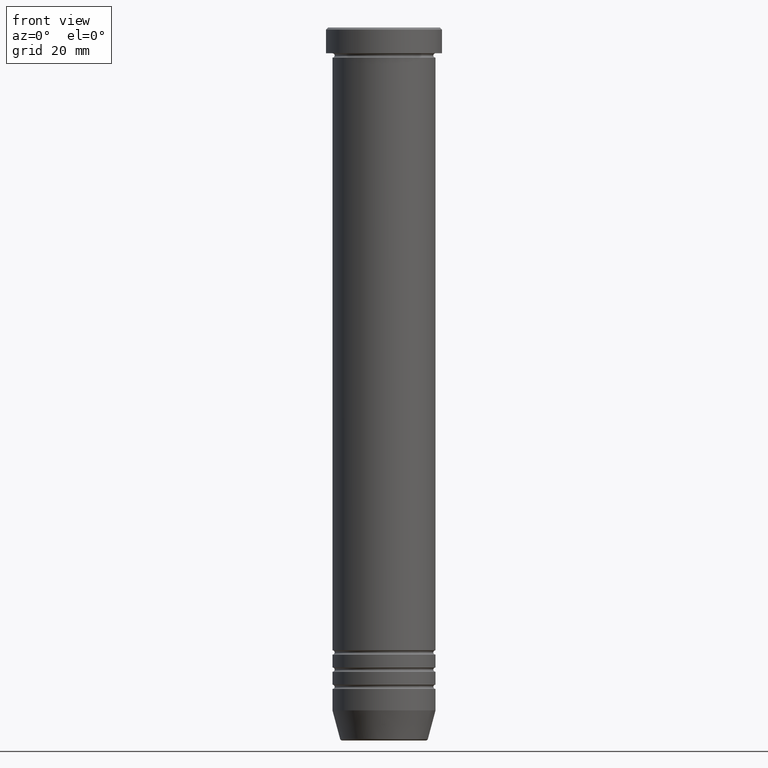
[diagram: clean part render]
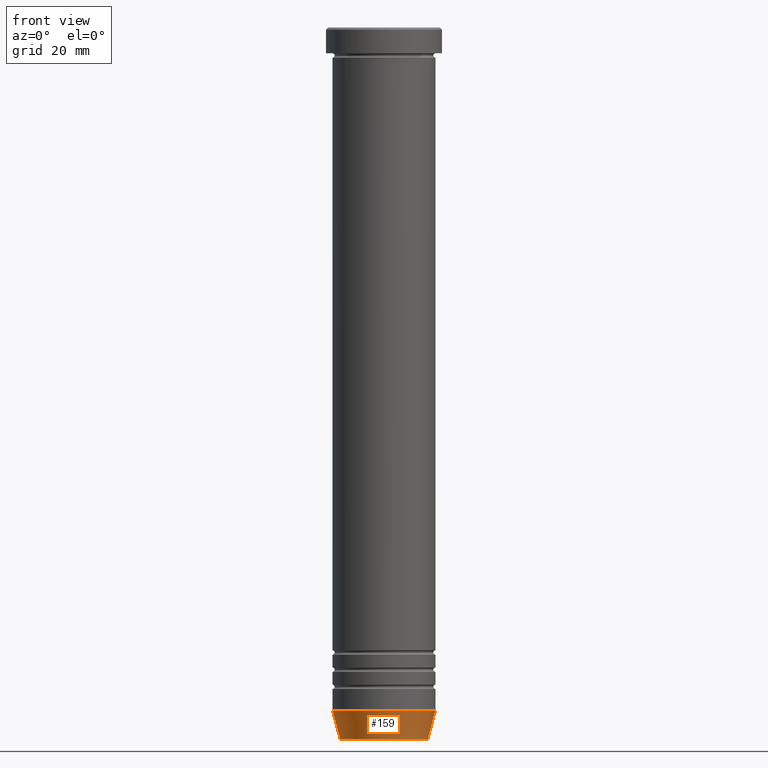
[diagram: same view with one face highlighted and labeled with its STEP entity id]
A machine part, front view. The second image highlights one B-rep face of the part: STEP entity #159.
In plain terms, the highlighted conical surface has half-angle 15 deg.
Its self-contained STEP definition (entity closure, byte-faithful):
#12 = AXIS2_PLACEMENT_3D ( 'NONE', #77, #83, #543 ) ;
#29 = EDGE_CURVE ( 'NONE', #1007, #180, #98, .T. ) ;
#43 = CIRCLE ( 'NONE', #1045, 12.00000000000000178 ) ;
#51 = CARTESIAN_POINT ( 'NONE',  ( 0.000000000000000000, 0.000000000000000000, -159.0000000000000000 ) ) ;
#77 = CARTESIAN_POINT ( 'NONE',  ( 0.000000000000000000, 0.000000000000000000, -165.6294095225512706 ) ) ;
#83 = DIRECTION ( 'NONE',  ( -0.000000000000000000, -0.000000000000000000, 1.000000000000000000 ) ) ;
#93 = ORIENTED_EDGE ( 'NONE', *, *, #613, .F. ) ;
#98 = LINE ( 'NONE', #466, #664 ) ;
#104 = CONICAL_SURFACE ( 'NONE', #812, 10.12435565298213902, 0.2617993877991507956 ) ;
#132 = LINE ( 'NONE', #490, #859 ) ;
#159 = ADVANCED_FACE ( 'NONE', ( #1111 ), #104, .T. ) ;
#180 = VERTEX_POINT ( 'NONE', #1049 ) ;
#257 = CARTESIAN_POINT ( 'NONE',  ( 0.000000000000000000, 0.000000000000000000, -165.9999999999999716 ) ) ;
#291 = VERTEX_POINT ( 'NONE', #302 ) ;
#302 = CARTESIAN_POINT ( 'NONE',  ( -10.22365507213718772, 1.360806402472382547E-15, -165.6294095225512706 ) ) ;
#329 = DIRECTION ( 'NONE',  ( 1.000000000000000000, 0.000000000000000000, 0.000000000000000000 ) ) ;
#389 = CIRCLE ( 'NONE', #12, 10.22365507213718772 ) ;
#423 = DIRECTION ( 'NONE',  ( -0.000000000000000000, -0.000000000000000000, 1.000000000000000000 ) ) ;
#461 = EDGE_CURVE ( 'NONE', #291, #1129, #132, .T. ) ;
#466 = CARTESIAN_POINT ( 'NONE',  ( 10.12435565298213902, 0.000000000000000000, -165.9999999999999716 ) ) ;
#490 = CARTESIAN_POINT ( 'NONE',  ( -10.12435565298213902, 1.239875974385398743E-15, -165.9999999999999716 ) ) ;
#543 = DIRECTION ( 'NONE',  ( -1.000000000000000000, 0.000000000000000000, 0.000000000000000000 ) ) ;
#562 = ORIENTED_EDGE ( 'NONE', *, *, #29, .T. ) ;
#563 = CARTESIAN_POINT ( 'NONE',  ( -12.00000000000000178, 1.469576158976824144E-15, -159.0000000000000000 ) ) ;
#567 = EDGE_LOOP ( 'NONE', ( #967, #645, #562, #93 ) ) ;
#576 = DIRECTION ( 'NONE',  ( -0.2588190451025220162, 3.169619151431780349E-17, 0.9659258262890678681 ) ) ;
#580 = EDGE_CURVE ( 'NONE', #291, #1007, #389, .T. ) ;
#613 = EDGE_CURVE ( 'NONE', #1129, #180, #43, .T. ) ;
#645 = ORIENTED_EDGE ( 'NONE', *, *, #580, .T. ) ;
#664 = VECTOR ( 'NONE', #811, 1000.000000000000114 ) ;
#701 = DIRECTION ( 'NONE',  ( -0.000000000000000000, -0.000000000000000000, 1.000000000000000000 ) ) ;
#779 = CARTESIAN_POINT ( 'NONE',  ( 10.22365507213718772, 0.000000000000000000, -165.6294095225512706 ) ) ;
#811 = DIRECTION ( 'NONE',  ( 0.2588190451025220162, 0.000000000000000000, 0.9659258262890678681 ) ) ;
#812 = AXIS2_PLACEMENT_3D ( 'NONE', #257, #423, #329 ) ;
#859 = VECTOR ( 'NONE', #576, 1000.000000000000114 ) ;
#944 = DIRECTION ( 'NONE',  ( 1.000000000000000000, 0.000000000000000000, 0.000000000000000000 ) ) ;
#967 = ORIENTED_EDGE ( 'NONE', *, *, #461, .F. ) ;
#1007 = VERTEX_POINT ( 'NONE', #779 ) ;
#1045 = AXIS2_PLACEMENT_3D ( 'NONE', #51, #701, #944 ) ;
#1049 = CARTESIAN_POINT ( 'NONE',  ( 12.00000000000000178, 0.000000000000000000, -159.0000000000000000 ) ) ;
#1111 = FACE_OUTER_BOUND ( 'NONE', #567, .T. ) ;
#1129 = VERTEX_POINT ( 'NONE', #563 ) ;